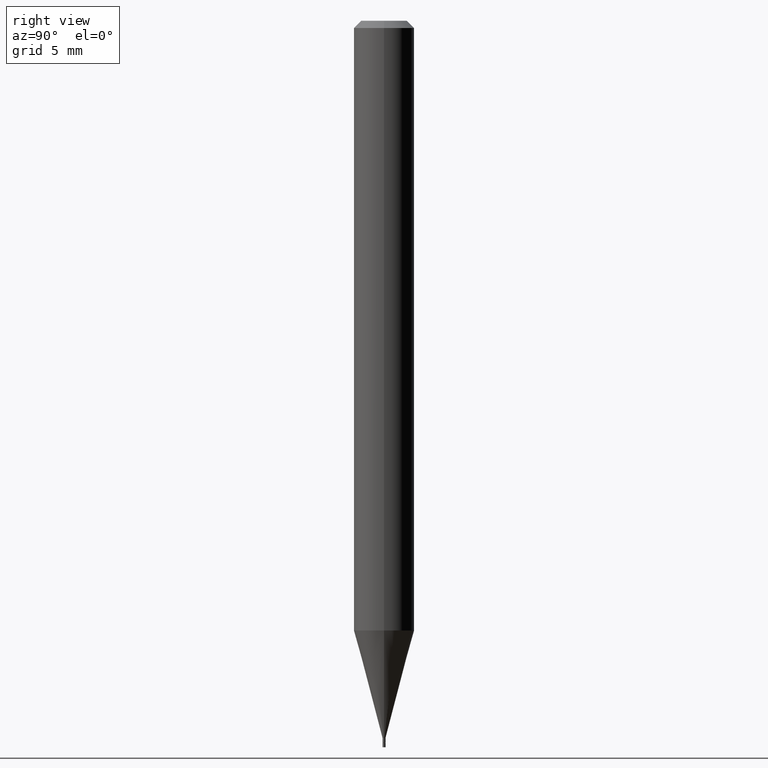
[diagram: clean part render]
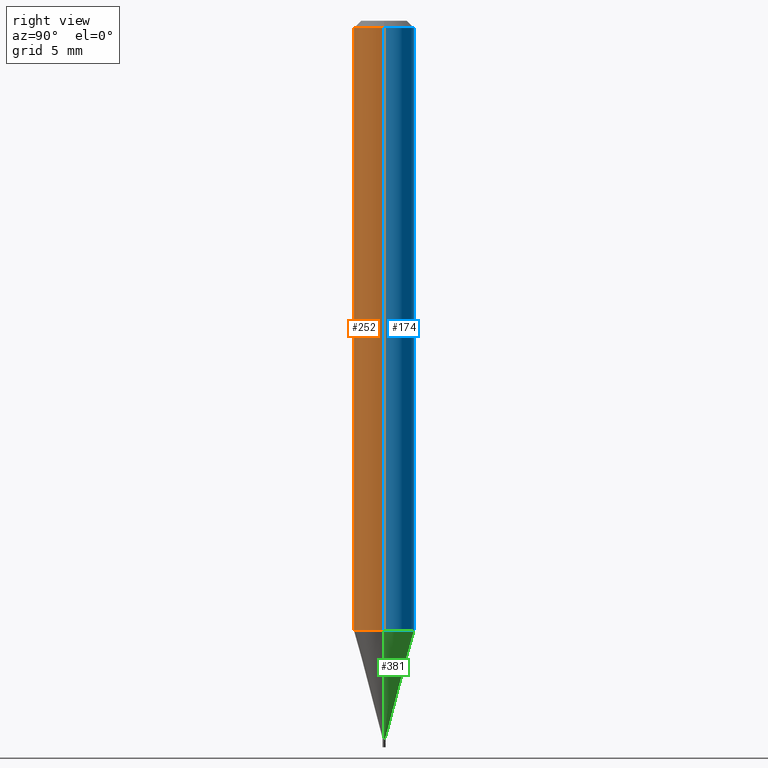
[diagram: same view with three faces highlighted in distinct colors, each labeled with its STEP entity id]
A machine part, right view with three faces highlighted in distinct colors.
Their STEP definitions:

[orange] entity #252 — the highlighted cylindrical surface (edge-blend (fillet) strip) has radius 1.5875 mm, axis along (-0, 0, 1).
#10 = CIRCLE ( 'NONE', #178, 0.06250000000000000000 ) ;
#26 = LINE ( 'NONE', #276, #154 ) ;
#59 = VERTEX_POINT ( 'NONE', #353 ) ;
#77 = CARTESIAN_POINT ( 'NONE',  ( 0.000000000000000000, 0.000000000000000000, 0.000000000000000000 ) ) ;
#94 = EDGE_CURVE ( 'NONE', #59, #275, #166, .T. ) ;
#101 = DIRECTION ( 'NONE',  ( 1.000000000000000000, -6.982962677686266711E-15, 0.000000000000000000 ) ) ;
#105 = CARTESIAN_POINT ( 'NONE',  ( 0.06250000000000000000, -4.832011078042738278E-15, -1.258942976949652293 ) ) ;
#115 = CARTESIAN_POINT ( 'NONE',  ( 0.06250000000000000000, -4.888073874380388472E-16, -0.01499999999999999944 ) ) ;
#128 = CARTESIAN_POINT ( 'NONE',  ( 3.078705778896227940E-29, -4.395575910687346608E-15, -1.258942976949652293 ) ) ;
#130 = EDGE_CURVE ( 'NONE', #323, #59, #26, .T. ) ;
#136 = AXIS2_PLACEMENT_3D ( 'NONE', #77, #243, #466 ) ;
#154 = VECTOR ( 'NONE', #170, 39.37007874015748143 ) ;
#161 = CARTESIAN_POINT ( 'NONE',  ( 3.668203209277705088E-31, -5.237222008264718399E-17, -0.01499999999999999944 ) ) ;
#166 = CIRCLE ( 'NONE', #373, 0.06250000000000000000 ) ;
#170 = DIRECTION ( 'NONE',  ( -2.445468806185136877E-29, 3.491481338843145188E-15, 1.000000000000000000 ) ) ;
#178 = AXIS2_PLACEMENT_3D ( 'NONE', #128, #232, #264 ) ;
#193 = EDGE_CURVE ( 'NONE', #323, #242, #10, .T. ) ;
#209 = CARTESIAN_POINT ( 'NONE',  ( -0.06250000000000000000, -3.951486700837283992E-15, -1.258942976949652293 ) ) ;
#232 = DIRECTION ( 'NONE',  ( -2.445468806185136597E-29, 3.491481338843145583E-15, 1.000000000000000000 ) ) ;
#242 = VERTEX_POINT ( 'NONE', #105 ) ;
#243 = DIRECTION ( 'NONE',  ( -2.445468806185136597E-29, 3.491481338843145583E-15, 1.000000000000000000 ) ) ;
#246 = EDGE_CURVE ( 'NONE', #242, #275, #326, .T. ) ;
#250 = FACE_OUTER_BOUND ( 'NONE', #454, .T. ) ;
#252 = ADVANCED_FACE ( 'NONE', ( #250 ), #322, .T. ) ;
#264 = DIRECTION ( 'NONE',  ( 1.000000000000000000, -6.982962677686262766E-15, 0.000000000000000000 ) ) ;
#275 = VERTEX_POINT ( 'NONE', #115 ) ;
#276 = CARTESIAN_POINT ( 'NONE',  ( -0.06250000000000000000, 4.440892098500626162E-16, -3.074334431409316114E-30 ) ) ;
#279 = ORIENTED_EDGE ( 'NONE', *, *, #94, .F. ) ;
#312 = ORIENTED_EDGE ( 'NONE', *, *, #130, .F. ) ;
#322 = CYLINDRICAL_SURFACE ( 'NONE', #136, 0.06250000000000000000 ) ;
#323 = VERTEX_POINT ( 'NONE', #209 ) ;
#326 = LINE ( 'NONE', #362, #394 ) ;
#353 = CARTESIAN_POINT ( 'NONE',  ( -0.06250000000000000000, -1.779884855534934425E-15, -0.01499999999999999944 ) ) ;
#362 = CARTESIAN_POINT ( 'NONE',  ( 0.06250000000000000000, -4.364351673553916694E-16, 3.047610484872459871E-30 ) ) ;
#373 = AXIS2_PLACEMENT_3D ( 'NONE', #161, #375, #101 ) ;
#375 = DIRECTION ( 'NONE',  ( -2.445468806185136597E-29, 3.491481338843145583E-15, 1.000000000000000000 ) ) ;
#394 = VECTOR ( 'NONE', #433, 39.37007874015748143 ) ;
#433 = DIRECTION ( 'NONE',  ( -2.445468806185136877E-29, 3.491481338843145188E-15, 1.000000000000000000 ) ) ;
#434 = ORIENTED_EDGE ( 'NONE', *, *, #246, .T. ) ;
#438 = ORIENTED_EDGE ( 'NONE', *, *, #193, .T. ) ;
#454 = EDGE_LOOP ( 'NONE', ( #312, #438, #434, #279 ) ) ;
#466 = DIRECTION ( 'NONE',  ( 1.000000000000000000, -6.982962677686266711E-15, 4.876176775795935793E-29 ) ) ;

[blue] entity #174 — the highlighted cylindrical surface (edge-blend (fillet) strip) has radius 1.5875 mm, axis along (-0, 0, 1).
#24 = ORIENTED_EDGE ( 'NONE', *, *, #458, .F. ) ;
#26 = LINE ( 'NONE', #276, #154 ) ;
#59 = VERTEX_POINT ( 'NONE', #353 ) ;
#64 = CIRCLE ( 'NONE', #157, 0.06250000000000000000 ) ;
#97 = AXIS2_PLACEMENT_3D ( 'NONE', #348, #382, #446 ) ;
#105 = CARTESIAN_POINT ( 'NONE',  ( 0.06250000000000000000, -4.832011078042738278E-15, -1.258942976949652293 ) ) ;
#109 = ORIENTED_EDGE ( 'NONE', *, *, #395, .T. ) ;
#112 = CARTESIAN_POINT ( 'NONE',  ( 3.078705778896227940E-29, -4.395575910687346608E-15, -1.258942976949652293 ) ) ;
#115 = CARTESIAN_POINT ( 'NONE',  ( 0.06250000000000000000, -4.888073874380388472E-16, -0.01499999999999999944 ) ) ;
#130 = EDGE_CURVE ( 'NONE', #323, #59, #26, .T. ) ;
#154 = VECTOR ( 'NONE', #170, 39.37007874015748143 ) ;
#157 = AXIS2_PLACEMENT_3D ( 'NONE', #333, #185, #222 ) ;
#170 = DIRECTION ( 'NONE',  ( -2.445468806185136877E-29, 3.491481338843145188E-15, 1.000000000000000000 ) ) ;
#174 = ADVANCED_FACE ( 'NONE', ( #269 ), #207, .T. ) ;
#182 = DIRECTION ( 'NONE',  ( -2.445468806185136597E-29, 3.491481338843145583E-15, 1.000000000000000000 ) ) ;
#185 = DIRECTION ( 'NONE',  ( -2.445468806185136597E-29, 3.491481338843145583E-15, 1.000000000000000000 ) ) ;
#201 = ORIENTED_EDGE ( 'NONE', *, *, #130, .T. ) ;
#207 = CYLINDRICAL_SURFACE ( 'NONE', #97, 0.06250000000000000000 ) ;
#209 = CARTESIAN_POINT ( 'NONE',  ( -0.06250000000000000000, -3.951486700837283992E-15, -1.258942976949652293 ) ) ;
#222 = DIRECTION ( 'NONE',  ( 1.000000000000000000, -6.982962677686266711E-15, 0.000000000000000000 ) ) ;
#242 = VERTEX_POINT ( 'NONE', #105 ) ;
#246 = EDGE_CURVE ( 'NONE', #242, #275, #326, .T. ) ;
#269 = FACE_OUTER_BOUND ( 'NONE', #330, .T. ) ;
#275 = VERTEX_POINT ( 'NONE', #115 ) ;
#276 = CARTESIAN_POINT ( 'NONE',  ( -0.06250000000000000000, 4.440892098500626162E-16, -3.074334431409316114E-30 ) ) ;
#288 = DIRECTION ( 'NONE',  ( 1.000000000000000000, -6.982962677686262766E-15, 0.000000000000000000 ) ) ;
#323 = VERTEX_POINT ( 'NONE', #209 ) ;
#326 = LINE ( 'NONE', #362, #394 ) ;
#330 = EDGE_LOOP ( 'NONE', ( #109, #201, #24, #426 ) ) ;
#333 = CARTESIAN_POINT ( 'NONE',  ( 3.668203209277705088E-31, -5.237222008264718399E-17, -0.01499999999999999944 ) ) ;
#348 = CARTESIAN_POINT ( 'NONE',  ( 0.000000000000000000, 0.000000000000000000, 0.000000000000000000 ) ) ;
#353 = CARTESIAN_POINT ( 'NONE',  ( -0.06250000000000000000, -1.779884855534934425E-15, -0.01499999999999999944 ) ) ;
#362 = CARTESIAN_POINT ( 'NONE',  ( 0.06250000000000000000, -4.364351673553916694E-16, 3.047610484872459871E-30 ) ) ;
#382 = DIRECTION ( 'NONE',  ( -2.445468806185136597E-29, 3.491481338843145583E-15, 1.000000000000000000 ) ) ;
#394 = VECTOR ( 'NONE', #433, 39.37007874015748143 ) ;
#395 = EDGE_CURVE ( 'NONE', #242, #323, #432, .T. ) ;
#407 = AXIS2_PLACEMENT_3D ( 'NONE', #112, #182, #288 ) ;
#426 = ORIENTED_EDGE ( 'NONE', *, *, #246, .F. ) ;
#432 = CIRCLE ( 'NONE', #407, 0.06250000000000000000 ) ;
#433 = DIRECTION ( 'NONE',  ( -2.445468806185136877E-29, 3.491481338843145188E-15, 1.000000000000000000 ) ) ;
#446 = DIRECTION ( 'NONE',  ( 1.000000000000000000, -6.982962677686266711E-15, 4.876176775795935793E-29 ) ) ;
#458 = EDGE_CURVE ( 'NONE', #275, #59, #64, .T. ) ;

[green] entity #381 — the highlighted conical surface has half-angle 15 deg.
#38 = DIRECTION ( 'NONE',  ( -0.2588190451025213501, 5.211531920934551042E-15, 0.9659258262890682012 ) ) ;
#48 = LINE ( 'NONE', #190, #198 ) ;
#89 = CIRCLE ( 'NONE', #227, 0.002999999999999921566 ) ;
#105 = CARTESIAN_POINT ( 'NONE',  ( 0.06250000000000000000, -4.832011078042738278E-15, -1.258942976949652293 ) ) ;
#112 = CARTESIAN_POINT ( 'NONE',  ( 3.078705778896227940E-29, -4.395575910687346608E-15, -1.258942976949652293 ) ) ;
#144 = VERTEX_POINT ( 'NONE', #200 ) ;
#147 = DIRECTION ( 'NONE',  ( 1.000000000000000000, -6.982962677686191769E-15, 0.000000000000000000 ) ) ;
#151 = DIRECTION ( 'NONE',  ( 0.2588190451025213501, 1.565188264969621968E-15, 0.9659258262890682012 ) ) ;
#158 = CARTESIAN_POINT ( 'NONE',  ( -0.002999999999999921566, -4.550527140795590610E-15, -1.481000000000000094 ) ) ;
#168 = VERTEX_POINT ( 'NONE', #158 ) ;
#169 = CONICAL_SURFACE ( 'NONE', #213, 0.002999999999999921566, 0.2617993877991500740 ) ;
#182 = DIRECTION ( 'NONE',  ( -2.445468806185136597E-29, 3.491481338843145583E-15, 1.000000000000000000 ) ) ;
#190 = CARTESIAN_POINT ( 'NONE',  ( 0.002999999999999921566, -5.191832750859756717E-15, -1.481000000000000094 ) ) ;
#198 = VECTOR ( 'NONE', #151, 39.37007874015747433 ) ;
#200 = CARTESIAN_POINT ( 'NONE',  ( 0.002999999999999921566, -5.191832750859756717E-15, -1.481000000000000094 ) ) ;
#209 = CARTESIAN_POINT ( 'NONE',  ( -0.06250000000000000000, -3.951486700837283992E-15, -1.258942976949652293 ) ) ;
#211 = LINE ( 'NONE', #431, #338 ) ;
#213 = AXIS2_PLACEMENT_3D ( 'NONE', #217, #456, #147 ) ;
#217 = CARTESIAN_POINT ( 'NONE',  ( 3.621739301960187407E-29, -5.170883862826698675E-15, -1.481000000000000094 ) ) ;
#227 = AXIS2_PLACEMENT_3D ( 'NONE', #241, #387, #430 ) ;
#241 = CARTESIAN_POINT ( 'NONE',  ( 3.621739301960187407E-29, -5.170883862826698675E-15, -1.481000000000000094 ) ) ;
#242 = VERTEX_POINT ( 'NONE', #105 ) ;
#280 = EDGE_LOOP ( 'NONE', ( #452, #383, #351, #460 ) ) ;
#288 = DIRECTION ( 'NONE',  ( 1.000000000000000000, -6.982962677686262766E-15, 0.000000000000000000 ) ) ;
#292 = EDGE_CURVE ( 'NONE', #144, #168, #89, .T. ) ;
#321 = EDGE_CURVE ( 'NONE', #168, #323, #211, .T. ) ;
#323 = VERTEX_POINT ( 'NONE', #209 ) ;
#338 = VECTOR ( 'NONE', #38, 39.37007874015747433 ) ;
#351 = ORIENTED_EDGE ( 'NONE', *, *, #395, .F. ) ;
#381 = ADVANCED_FACE ( 'NONE', ( #464 ), #169, .T. ) ;
#383 = ORIENTED_EDGE ( 'NONE', *, *, #321, .T. ) ;
#387 = DIRECTION ( 'NONE',  ( -2.445468806185136597E-29, 3.491481338843145583E-15, 1.000000000000000000 ) ) ;
#395 = EDGE_CURVE ( 'NONE', #242, #323, #432, .T. ) ;
#407 = AXIS2_PLACEMENT_3D ( 'NONE', #112, #182, #288 ) ;
#424 = EDGE_CURVE ( 'NONE', #144, #242, #48, .T. ) ;
#430 = DIRECTION ( 'NONE',  ( 1.000000000000000000, -6.982962677686191769E-15, 0.000000000000000000 ) ) ;
#431 = CARTESIAN_POINT ( 'NONE',  ( -0.002999999999999921566, -5.149567580753896439E-15, -1.481000000000000094 ) ) ;
#432 = CIRCLE ( 'NONE', #407, 0.06250000000000000000 ) ;
#452 = ORIENTED_EDGE ( 'NONE', *, *, #292, .T. ) ;
#456 = DIRECTION ( 'NONE',  ( -2.445468806185136597E-29, 3.491481338843145583E-15, 1.000000000000000000 ) ) ;
#460 = ORIENTED_EDGE ( 'NONE', *, *, #424, .F. ) ;
#464 = FACE_OUTER_BOUND ( 'NONE', #280, .T. ) ;